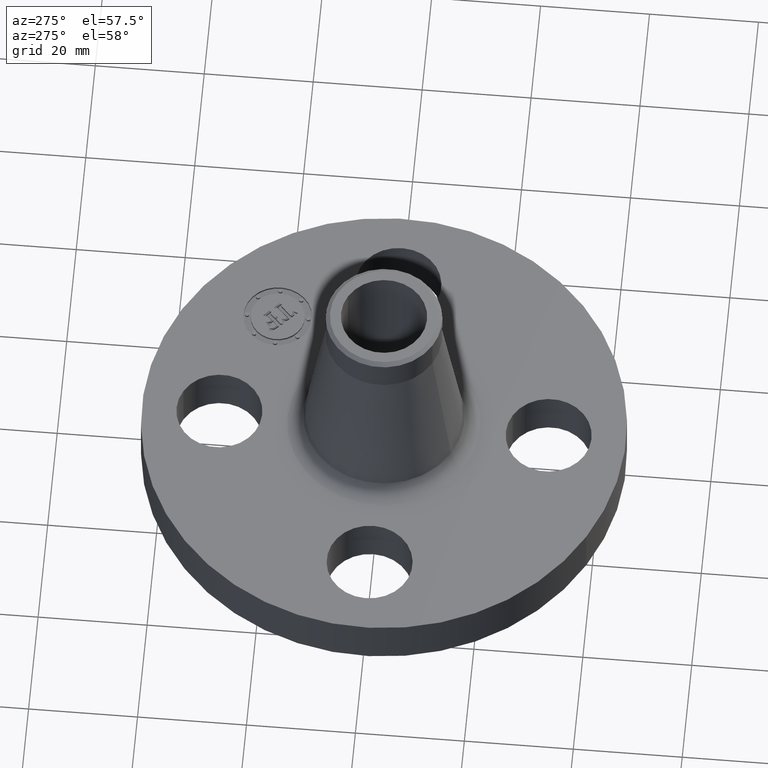
[diagram: clean part render]
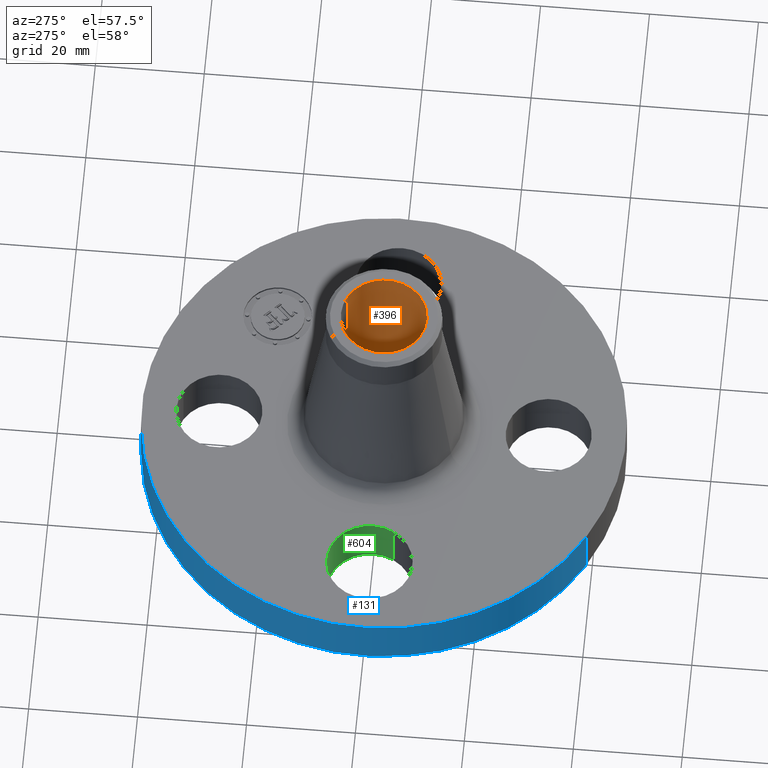
[diagram: same view with three faces highlighted in distinct colors, each labeled with its STEP entity id]
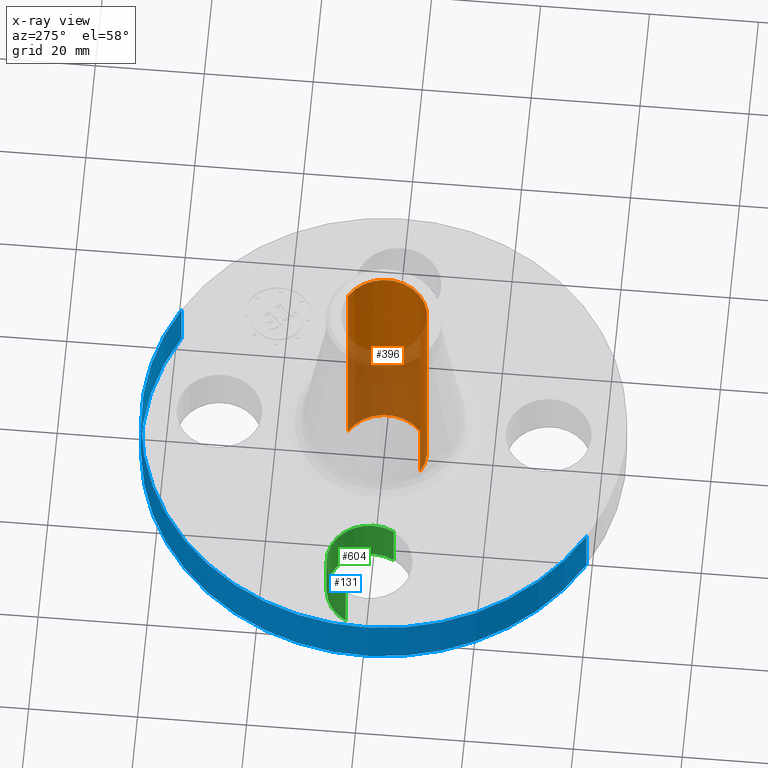
[diagram: x-ray of the same camera — body ghosted, the three highlighted faces saturated]
A machine part, auxiliary view with three faces highlighted in distinct colors.
The next image is the same camera in x-ray (body ghosted, the three faces saturated) — at least one of them is partly hidden behind the body in this view.
Their STEP definitions:

[orange] entity #396 — the highlighted cylindrical surface (partial cylindrical patch) has radius 7.8994 mm, axis along (0, 0, -1).
#343=AXIS2_PLACEMENT_3D('Cylinder Axis2P3D',#340,#341,#342) ;
#382=AXIS2_PLACEMENT_3D('Circle Axis2P3D',#380,#381,$) ;
#387=AXIS2_PLACEMENT_3D('Circle Axis2P3D',#385,#386,$) ;
#340=CARTESIAN_POINT('Axis2P3D Location',(0.,0.,0.905000000004)) ;
#349=CARTESIAN_POINT('Vertex',(-0.149101342507,-0.272928176749,1.81000000001)) ;
#351=CARTESIAN_POINT('Vertex',(0.149101342507,0.272928176749,1.81000000001)) ;
#354=CARTESIAN_POINT('Line Origine',(-0.149101342507,-0.272928176749,0.905000000004)) ;
#358=CARTESIAN_POINT('Vertex',(-0.149101342507,-0.272928176749,-4.19611851827E-016)) ;
#365=CARTESIAN_POINT('Vertex',(0.149101342507,0.272928176749,-4.19611851827E-016)) ;
#368=CARTESIAN_POINT('Line Origine',(0.149101342507,0.272928176749,0.905000000004)) ;
#380=CARTESIAN_POINT('Axis2P3D Location',(0.,0.,1.81000000001)) ;
#385=CARTESIAN_POINT('Axis2P3D Location',(0.,0.,-5.59482469102E-016)) ;
#341=DIRECTION('Axis2P3D Direction',(0.,0.,-0.0393700787402)) ;
#342=DIRECTION('Axis2P3D XDirection',(0.0188750212049,0.0345504945626,0.)) ;
#355=DIRECTION('Vector Direction',(0.,0.,-0.0393700787402)) ;
#369=DIRECTION('Vector Direction',(0.,0.,-0.0393700787402)) ;
#381=DIRECTION('Axis2P3D Direction',(0.,0.,-0.0393700787402)) ;
#386=DIRECTION('Axis2P3D Direction',(0.,0.,-0.0393700787402)) ;
#356=VECTOR('Line Direction',#355,0.0393700787402) ;
#370=VECTOR('Line Direction',#369,0.0393700787402) ;
#391=ORIENTED_EDGE('',*,*,#384,.F.) ;
#392=ORIENTED_EDGE('',*,*,#372,.T.) ;
#393=ORIENTED_EDGE('',*,*,#389,.T.) ;
#394=ORIENTED_EDGE('',*,*,#360,.F.) ;
#396=ADVANCED_FACE('PartBody',(#395),#344,.F.) ;
#383=CIRCLE('generated circle',#382,0.311000000001) ;
#388=CIRCLE('generated circle',#387,0.311000000001) ;
#344=CYLINDRICAL_SURFACE('generated cylinder',#343,0.311000000001) ;
#360=EDGE_CURVE('',#350,#359,#357,.T.) ;
#372=EDGE_CURVE('',#352,#366,#371,.T.) ;
#384=EDGE_CURVE('',#352,#350,#383,.T.) ;
#389=EDGE_CURVE('',#366,#359,#388,.T.) ;
#390=EDGE_LOOP('',(#391,#392,#393,#394)) ;
#395=FACE_OUTER_BOUND('',#390,.T.) ;
#357=LINE('Line',#354,#356) ;
#371=LINE('Line',#368,#370) ;
#350=VERTEX_POINT('',#349) ;
#352=VERTEX_POINT('',#351) ;
#359=VERTEX_POINT('',#358) ;
#366=VERTEX_POINT('',#365) ;

[blue] entity #131 — the highlighted cylindrical surface (partial cylindrical patch) has radius 44.45 mm, axis along (0, 0, -1).
#95=AXIS2_PLACEMENT_3D('Cylinder Axis2P3D',#92,#93,#94) ;
#99=AXIS2_PLACEMENT_3D('Circle Axis2P3D',#97,#98,$) ;
#115=AXIS2_PLACEMENT_3D('Circle Axis2P3D',#113,#114,$) ;
#92=CARTESIAN_POINT('Axis2P3D Location',(0.,0.,0.905000000004)) ;
#97=CARTESIAN_POINT('Axis2P3D Location',(0.,0.,1.39870617276E-016)) ;
#101=CARTESIAN_POINT('Vertex',(-0.838994692561,-1.53576948331,1.39870617276E-016)) ;
#103=CARTESIAN_POINT('Vertex',(0.838994692561,1.53576948331,1.39870617276E-016)) ;
#106=CARTESIAN_POINT('Line Origine',(-0.838994692561,-1.53576948331,0.190000000001)) ;
#110=CARTESIAN_POINT('Vertex',(-0.838994692561,-1.53576948331,0.380000000002)) ;
#113=CARTESIAN_POINT('Axis2P3D Location',(0.,0.,0.380000000002)) ;
#117=CARTESIAN_POINT('Vertex',(0.838994692561,1.53576948331,0.380000000002)) ;
#120=CARTESIAN_POINT('Line Origine',(0.838994692561,1.53576948331,0.190000000001)) ;
#93=DIRECTION('Axis2P3D Direction',(0.,0.,-0.0393700787402)) ;
#94=DIRECTION('Axis2P3D XDirection',(0.0188750212049,0.0345504945626,0.)) ;
#98=DIRECTION('Axis2P3D Direction',(0.,0.,-0.0393700787402)) ;
#107=DIRECTION('Vector Direction',(0.,0.,-0.0393700787402)) ;
#114=DIRECTION('Axis2P3D Direction',(0.,0.,-0.0393700787402)) ;
#121=DIRECTION('Vector Direction',(0.,0.,-0.0393700787402)) ;
#108=VECTOR('Line Direction',#107,0.0393700787402) ;
#122=VECTOR('Line Direction',#121,0.0393700787402) ;
#126=ORIENTED_EDGE('',*,*,#105,.F.) ;
#127=ORIENTED_EDGE('',*,*,#112,.T.) ;
#128=ORIENTED_EDGE('',*,*,#119,.T.) ;
#129=ORIENTED_EDGE('',*,*,#124,.F.) ;
#131=ADVANCED_FACE('PartBody',(#130),#96,.T.) ;
#100=CIRCLE('generated circle',#99,1.75000000001) ;
#116=CIRCLE('generated circle',#115,1.75000000001) ;
#96=CYLINDRICAL_SURFACE('generated cylinder',#95,1.75000000001) ;
#105=EDGE_CURVE('',#102,#104,#100,.T.) ;
#112=EDGE_CURVE('',#102,#111,#109,.F.) ;
#119=EDGE_CURVE('',#111,#118,#116,.T.) ;
#124=EDGE_CURVE('',#104,#118,#123,.F.) ;
#125=EDGE_LOOP('',(#126,#127,#128,#129)) ;
#130=FACE_OUTER_BOUND('',#125,.T.) ;
#109=LINE('Line',#106,#108) ;
#123=LINE('Line',#120,#122) ;
#102=VERTEX_POINT('',#101) ;
#104=VERTEX_POINT('',#103) ;
#111=VERTEX_POINT('',#110) ;
#118=VERTEX_POINT('',#117) ;

[green] entity #604 — the highlighted cylindrical surface (partial cylindrical patch) has radius 7.874 mm, axis along (-0, 0, -1).
#493=AXIS2_PLACEMENT_3D('Circle Axis2P3D',#491,#492,$) ;
#565=AXIS2_PLACEMENT_3D('Cylinder Axis2P3D',#562,#563,#564) ;
#595=AXIS2_PLACEMENT_3D('Circle Axis2P3D',#593,#594,$) ;
#486=CARTESIAN_POINT('Vertex',(-0.917949405818,-0.148621916968,0.)) ;
#488=CARTESIAN_POINT('Vertex',(-1.46205059419,0.148621916968,-6.99353086378E-017)) ;
#491=CARTESIAN_POINT('Axis2P3D Location',(-1.19,-2.09805925913E-016,0.)) ;
#562=CARTESIAN_POINT('Axis2P3D Location',(-1.19,-1.45732969099E-016,0.376062992128)) ;
#567=CARTESIAN_POINT('Line Origine',(-0.917949405818,-0.148621916968,0.190000000001)) ;
#571=CARTESIAN_POINT('Vertex',(-0.917949405818,-0.148621916968,0.380000000002)) ;
#574=CARTESIAN_POINT('Line Origine',(-1.46205059419,0.148621916968,0.190000000001)) ;
#578=CARTESIAN_POINT('Vertex',(-1.46205059419,0.148621916968,0.380000000002)) ;
#593=CARTESIAN_POINT('Axis2P3D Location',(-1.19,-1.45732969099E-016,0.380000000002)) ;
#492=DIRECTION('Axis2P3D Direction',(0.,0.,-0.0393700787402)) ;
#563=DIRECTION('Axis2P3D Direction',(-0.,0.,-0.0393700787402)) ;
#564=DIRECTION('Axis2P3D XDirection',(-0.0345504945626,0.0188750212049,0.)) ;
#568=DIRECTION('Vector Direction',(0.,0.,-0.0393700787402)) ;
#575=DIRECTION('Vector Direction',(0.,0.,-0.0393700787402)) ;
#594=DIRECTION('Axis2P3D Direction',(-0.,0.,-0.0393700787402)) ;
#569=VECTOR('Line Direction',#568,0.0393700787402) ;
#576=VECTOR('Line Direction',#575,0.0393700787402) ;
#599=ORIENTED_EDGE('',*,*,#580,.F.) ;
#600=ORIENTED_EDGE('',*,*,#495,.T.) ;
#601=ORIENTED_EDGE('',*,*,#573,.T.) ;
#602=ORIENTED_EDGE('',*,*,#597,.F.) ;
#604=ADVANCED_FACE('PartBody',(#603),#566,.F.) ;
#494=CIRCLE('generated circle',#493,0.310000000001) ;
#596=CIRCLE('generated circle',#595,0.310000000001) ;
#566=CYLINDRICAL_SURFACE('generated cylinder',#565,0.310000000001) ;
#495=EDGE_CURVE('',#489,#487,#494,.T.) ;
#573=EDGE_CURVE('',#487,#572,#570,.F.) ;
#580=EDGE_CURVE('',#489,#579,#577,.F.) ;
#597=EDGE_CURVE('',#579,#572,#596,.T.) ;
#598=EDGE_LOOP('',(#599,#600,#601,#602)) ;
#603=FACE_OUTER_BOUND('',#598,.T.) ;
#570=LINE('Line',#567,#569) ;
#577=LINE('Line',#574,#576) ;
#487=VERTEX_POINT('',#486) ;
#489=VERTEX_POINT('',#488) ;
#572=VERTEX_POINT('',#571) ;
#579=VERTEX_POINT('',#578) ;